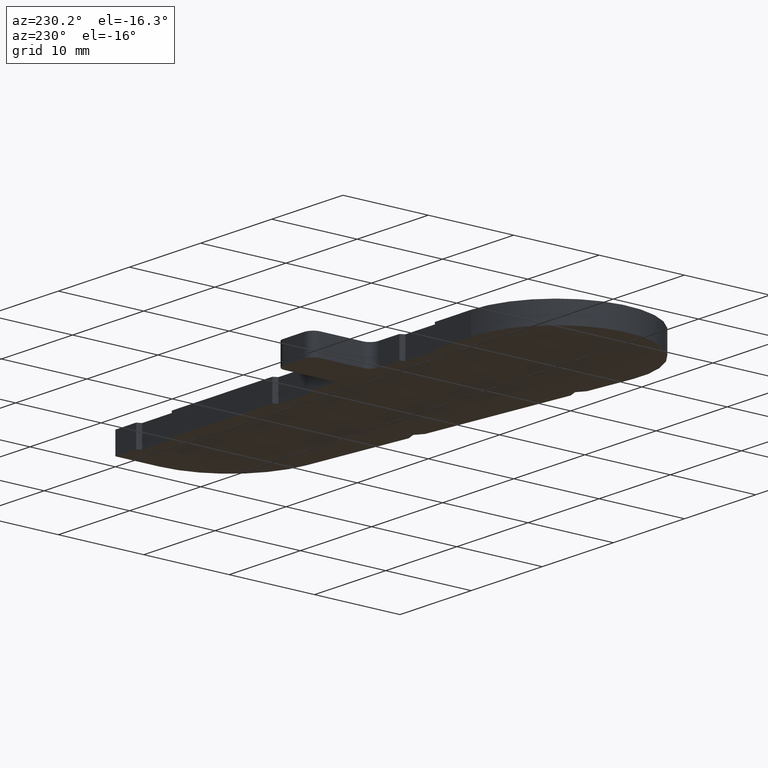
[diagram: clean part render]
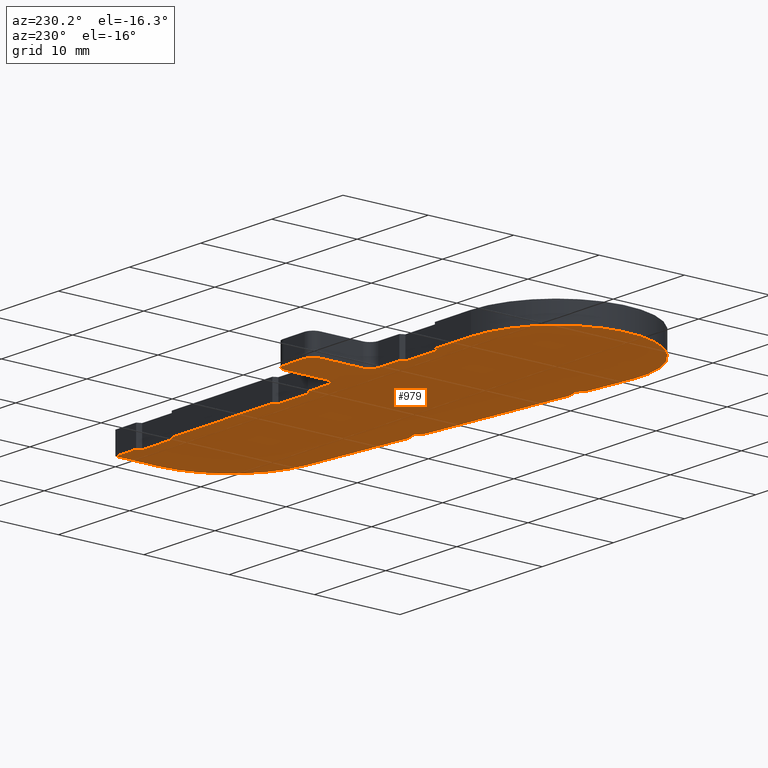
[diagram: same view with one face highlighted and labeled with its STEP entity id]
A machine part, auxiliary view. The second image highlights one B-rep face of the part: STEP entity #979.
In plain terms, the highlighted planar face has unit normal (0, 0, 1).
Its self-contained STEP definition (entity closure, byte-faithful):
#7=CARTESIAN_POINT('',(46.824999561297545,9.500002191171006,0.0));
#8=VERTEX_POINT('',#7);
#9=CARTESIAN_POINT('',(42.324999561297545,9.500001980593879,0.0));
#10=VERTEX_POINT('',#9);
#11=CARTESIAN_POINT('',(46.824999561297545,9.500002191171006,0.0));
#12=DIRECTION('',(-0.999999999999999,-0.000000046794917,0.0));
#13=VECTOR('',#12,4.500000000000004);
#14=LINE('',#11,#13);
#15=EDGE_CURVE('',#8,#10,#14,.T.);
#47=CARTESIAN_POINT('',(42.074999537900112,10.000001968895958,0.0));
#48=VERTEX_POINT('',#47);
#49=CARTESIAN_POINT('',(42.324999561297545,9.500001980593879,0.0));
#50=DIRECTION('',(-0.447213637353989,0.894427170072899,0.0));
#51=VECTOR('',#50,0.559016994375660);
#52=LINE('',#49,#51);
#53=EDGE_CURVE('',#10,#48,#52,.T.);
#78=CARTESIAN_POINT('',(27.924999526201645,10.000001306747436,0.0));
#79=VERTEX_POINT('',#78);
#80=CARTESIAN_POINT('',(42.074999537900112,10.000001968895930,0.0));
#81=DIRECTION('',(-0.999999999999999,-0.000000046794947,0.0));
#82=VECTOR('',#81,14.150000011698483);
#83=LINE('',#80,#82);
#84=EDGE_CURVE('',#48,#79,#83,.T.);
#109=CARTESIAN_POINT('',(27.674999549599079,9.500001295048833,0.0));
#110=VERTEX_POINT('',#109);
#111=CARTESIAN_POINT('',(27.924999526201645,10.000001306747436,0.0));
#112=DIRECTION('',(-0.447213553645438,-0.894427211927175,0.0));
#113=VECTOR('',#112,0.559016994374846);
#114=LINE('',#111,#113);
#115=EDGE_CURVE('',#79,#110,#114,.T.);
#140=CARTESIAN_POINT('',(23.174999549599079,9.500001084471705,0.0));
#141=VERTEX_POINT('',#140);
#142=CARTESIAN_POINT('',(27.674999549599079,9.500001295048833,0.0));
#143=DIRECTION('',(-0.999999999999999,-0.000000046794917,0.0));
#144=VECTOR('',#143,4.500000000000004);
#145=LINE('',#142,#144);
#146=EDGE_CURVE('',#110,#141,#145,.T.);
#171=CARTESIAN_POINT('',(22.924999526201645,10.000001072772875,0.0));
#172=VERTEX_POINT('',#171);
#173=CARTESIAN_POINT('',(23.174999549599079,9.500001084471705,0.0));
#174=DIRECTION('',(-0.447213637354640,0.894427170072574,0.0));
#175=VECTOR('',#174,0.559016994374846);
#176=LINE('',#173,#175);
#177=EDGE_CURVE('',#141,#172,#176,.T.);
#202=CARTESIAN_POINT('',(18.999999532050879,10.000000889102921,0.0));
#203=VERTEX_POINT('',#202);
#204=CARTESIAN_POINT('',(22.924999526201645,10.000001072772875,0.0));
#205=DIRECTION('',(-0.999999999999999,-0.000000046794893,0.0));
#206=VECTOR('',#205,3.924999994150771);
#207=LINE('',#204,#206);
#208=EDGE_CURVE('',#172,#203,#207,.T.);
#233=CARTESIAN_POINT('',(18.999999251281679,16.000000889102921,0.0));
#234=VERTEX_POINT('',#233);
#235=CARTESIAN_POINT('',(18.999999532050879,10.000000889102921,0.0));
#236=DIRECTION('',(-0.000000046794867,0.999999999999999,0.0));
#237=VECTOR('',#236,6.000000000000006);
#238=LINE('',#235,#237);
#239=EDGE_CURVE('',#203,#234,#238,.T.);
#264=CARTESIAN_POINT('',(17.999999204486585,17.000000842308054,0.0));
#265=VERTEX_POINT('',#264);
#266=CARTESIAN_POINT('',(17.999999251281679,16.000000842308054,0.0));
#267=DIRECTION('',(0.0,0.0,1.0));
#268=DIRECTION('',(1.0,0.0,0.0));
#269=AXIS2_PLACEMENT_3D('',#266,#267,#268);
#270=CIRCLE('',#269,1.0);
#271=EDGE_CURVE('',#234,#265,#270,.T.);
#297=CARTESIAN_POINT('',(14.999999204486585,17.000000701923454,0.0));
#298=VERTEX_POINT('',#297);
#299=CARTESIAN_POINT('',(17.999999204486585,17.000000842308054,0.0));
#300=DIRECTION('',(-0.999999999999999,-0.000000046794867,0.0));
#301=VECTOR('',#300,3.000000000000003);
#302=LINE('',#299,#301);
#303=EDGE_CURVE('',#265,#298,#302,.T.);
#328=CARTESIAN_POINT('',(13.999999251281679,16.000000655128588,0.0));
#329=VERTEX_POINT('',#328);
#330=CARTESIAN_POINT('',(14.999999251281679,16.000000701923454,0.0));
#331=DIRECTION('',(0.0,0.0,1.0));
#332=DIRECTION('',(1.0,0.0,0.0));
#333=AXIS2_PLACEMENT_3D('',#330,#331,#332);
#334=CIRCLE('',#333,1.0);
#335=EDGE_CURVE('',#298,#329,#334,.T.);
#361=CARTESIAN_POINT('',(13.999999485256012,11.000000655128588,0.0));
#362=VERTEX_POINT('',#361);
#363=CARTESIAN_POINT('',(13.999999251281679,16.000000655128588,0.0));
#364=DIRECTION('',(0.000000046794867,-0.999999999999999,0.0));
#365=VECTOR('',#364,5.000000000000005);
#366=LINE('',#363,#365);
#367=EDGE_CURVE('',#329,#362,#366,.T.);
#392=CARTESIAN_POINT('',(12.999999532050879,10.000000608333721,0.0));
#393=VERTEX_POINT('',#392);
#394=CARTESIAN_POINT('',(12.999999485256012,11.000000608333721,0.0));
#395=DIRECTION('',(0.0,0.0,-1.0));
#396=DIRECTION('',(1.0,0.0,0.0));
#397=AXIS2_PLACEMENT_3D('',#394,#395,#396);
#398=CIRCLE('',#397,1.0);
#399=EDGE_CURVE('',#362,#393,#398,.T.);
#425=CARTESIAN_POINT('',(10.074999537900339,10.000000471458634,0.0));
#426=VERTEX_POINT('',#425);
#427=CARTESIAN_POINT('',(12.999999532050879,10.000000608333721,0.0));
#428=DIRECTION('',(-0.999999999999999,-0.000000046794902,0.0));
#429=VECTOR('',#428,2.924999994150543);
#430=LINE('',#427,#429);
#431=EDGE_CURVE('',#393,#426,#430,.T.);
#456=CARTESIAN_POINT('',(9.824999561297773,9.500000459759804,0.0));
#457=VERTEX_POINT('',#456);
#458=CARTESIAN_POINT('',(10.074999537900339,10.000000471458634,0.0));
#459=DIRECTION('',(-0.447213553645275,-0.894427211927256,0.0));
#460=VECTOR('',#459,0.559016994375050);
#461=LINE('',#458,#460);
#462=EDGE_CURVE('',#426,#457,#461,.T.);
#487=CARTESIAN_POINT('',(5.324999561297773,9.500000249182904,0.0));
#488=VERTEX_POINT('',#487);
#489=CARTESIAN_POINT('',(9.824999561297773,9.500000459759804,0.0));
#490=DIRECTION('',(-0.999999999999999,-0.000000046794867,0.0));
#491=VECTOR('',#490,4.500000000000004);
#492=LINE('',#489,#491);
#493=EDGE_CURVE('',#457,#488,#492,.T.);
#518=CARTESIAN_POINT('',(5.074999537900339,10.000000237484073,0.0));
#519=VERTEX_POINT('',#518);
#520=CARTESIAN_POINT('',(5.324999561297773,9.500000249182904,0.0));
#521=DIRECTION('',(-0.447213637354640,0.894427170072574,0.0));
#522=VECTOR('',#521,0.559016994374846);
#523=LINE('',#520,#522);
#524=EDGE_CURVE('',#488,#519,#523,.T.);
#549=CARTESIAN_POINT('',(-0.000000467949107,10.0,0.0));
#550=VERTEX_POINT('',#549);
#551=CARTESIAN_POINT('',(5.074999537900339,10.000000237484073,0.0));
#552=DIRECTION('',(-0.999999999999999,-0.000000046794891,0.0));
#553=VECTOR('',#552,5.075000005849466);
#554=LINE('',#551,#553);
#555=EDGE_CURVE('',#519,#550,#554,.T.);
#580=CARTESIAN_POINT('',(1.207414269662650,-9.926839919199665,0.0));
#581=VERTEX_POINT('',#580);
#582=CARTESIAN_POINT('',(0.0,0.0,0.0));
#583=DIRECTION('',(0.0,0.0,1.0));
#584=DIRECTION('',(1.0,0.0,0.0));
#585=AXIS2_PLACEMENT_3D('',#582,#583,#584);
#586=CIRCLE('',#585,10.0);
#587=EDGE_CURVE('',#550,#581,#586,.T.);
#613=CARTESIAN_POINT('',(6.807316435082385,-9.245716637442456,0.0));
#614=VERTEX_POINT('',#613);
#615=CARTESIAN_POINT('',(1.207414269662650,-9.926839919199665,0.0));
#616=DIRECTION('',(0.992683991919963,0.120741426966250,0.0));
#617=VECTOR('',#616,5.641173032909157);
#618=LINE('',#615,#617);
#619=EDGE_CURVE('',#581,#614,#618,.T.);
#644=CARTESIAN_POINT('',(7.739629713516813,-8.628633214517635,0.0));
#645=VERTEX_POINT('',#644);
#646=CARTESIAN_POINT('',(6.807316435082385,-9.245716637442456,0.0));
#647=DIRECTION('',(0.833886346764108,0.551936192580638,0.0));
#648=VECTOR('',#647,1.118033988747107);
#649=LINE('',#646,#648);
#650=EDGE_CURVE('',#614,#645,#649,.T.);
#675=CARTESIAN_POINT('',(8.792684418921908,-9.004233783510017,0.0));
#676=VERTEX_POINT('',#675);
#677=CARTESIAN_POINT('',(7.739629713516813,-8.628633214517635,0.0));
#678=DIRECTION('',(0.941880762122971,-0.335947361862914,0.0));
#679=VECTOR('',#678,1.118033988749916);
#680=LINE('',#677,#679);
#681=EDGE_CURVE('',#645,#676,#680,.T.);
#706=CARTESIAN_POINT('',(26.660996273461265,-6.830888098122358,0.0));
#707=VERTEX_POINT('',#706);
#708=CARTESIAN_POINT('',(8.792684418921908,-9.004233783510017,0.0));
#709=DIRECTION('',(0.992683991919979,0.120741426966118,0.0));
#710=VECTOR('',#709,17.999999999979579);
#711=LINE('',#708,#710);
#712=EDGE_CURVE('',#676,#707,#711,.T.);
#737=CARTESIAN_POINT('',(27.593309551896802,-6.213804675197025,0.0));
#738=VERTEX_POINT('',#737);
#739=CARTESIAN_POINT('',(26.660996273461265,-6.830888098122358,0.0));
#740=DIRECTION('',(0.833886346764199,0.551936192580500,0.0));
#741=VECTOR('',#740,1.118033988748313);
#742=LINE('',#739,#741);
#743=EDGE_CURVE('',#707,#738,#742,.T.);
#768=CARTESIAN_POINT('',(28.646364257301919,-6.589405244191568,0.0));
#769=VERTEX_POINT('',#768);
#770=CARTESIAN_POINT('',(27.593309551896802,-6.213804675197025,0.0));
#771=DIRECTION('',(0.941880762122903,-0.335947361863103,0.0));
#772=VECTOR('',#771,1.118033988752078);
#773=LINE('',#770,#772);
#774=EDGE_CURVE('',#738,#769,#773,.T.);
#799=CARTESIAN_POINT('',(41.207414041973578,-5.061588650451199,0.0));
#800=VERTEX_POINT('',#799);
#801=CARTESIAN_POINT('',(28.646364257301919,-6.589405244191568,0.0));
#802=DIRECTION('',(0.992683991919960,0.120741426966280,0.0));
#803=VECTOR('',#802,12.653623798624185);
#804=LINE('',#801,#803);
#805=EDGE_CURVE('',#769,#800,#804,.T.);
#830=CARTESIAN_POINT('',(49.999999772310446,4.865251736693210,0.0));
#831=VERTEX_POINT('',#830);
#832=CARTESIAN_POINT('',(39.999999772310467,4.865251268748353,0.0));
#833=DIRECTION('',(0.0,0.0,1.000000000000000));
#834=DIRECTION('',(0.120741426966311,-0.992683991919956,0.0));
#835=AXIS2_PLACEMENT_3D('',#832,#833,#834);
#836=CIRCLE('',#835,9.999999999999993);
#837=EDGE_CURVE('',#800,#831,#836,.T.);
#863=CARTESIAN_POINT('',(49.999999772310446,10.000002339735374,0.0));
#864=VERTEX_POINT('',#863);
#865=CARTESIAN_POINT('',(49.999999772310446,4.865251736693210,0.0));
#866=DIRECTION('',(0.0,1.0,0.0));
#867=VECTOR('',#866,5.134750603042164);
#868=LINE('',#865,#867);
#869=EDGE_CURVE('',#831,#864,#868,.T.);
#894=CARTESIAN_POINT('',(47.074999537900112,10.000002202864096,0.0));
#895=VERTEX_POINT('',#894);
#896=CARTESIAN_POINT('',(49.999999772310453,10.000002339735374,0.0));
#897=DIRECTION('',(-0.999999999999999,-0.000000046793596,0.0));
#898=VECTOR('',#897,2.925000234410344);
#899=LINE('',#896,#898);
#900=EDGE_CURVE('',#864,#895,#899,.T.);
#925=CARTESIAN_POINT('',(47.074999537900112,10.000002202864096,0.0));
#926=DIRECTION('',(-0.447213553649383,-0.894427211925202,0.0));
#927=VECTOR('',#926,0.559016994369915);
#928=LINE('',#925,#927);
#929=EDGE_CURVE('',#895,#8,#928,.T.);
#942=CARTESIAN_POINT('',(-16.000119977836718,-12.700120084789177,0.0));
#943=DIRECTION('',(0.0,0.0,1.0));
#944=DIRECTION('',(1.0,0.0,0.0));
#945=AXIS2_PLACEMENT_3D('',#942,#943,#944);
#946=PLANE('',#945);
#947=ORIENTED_EDGE('',*,*,#929,.F.);
#948=ORIENTED_EDGE('',*,*,#900,.F.);
#949=ORIENTED_EDGE('',*,*,#869,.F.);
#950=ORIENTED_EDGE('',*,*,#837,.F.);
#951=ORIENTED_EDGE('',*,*,#805,.F.);
#952=ORIENTED_EDGE('',*,*,#774,.F.);
#953=ORIENTED_EDGE('',*,*,#743,.F.);
#954=ORIENTED_EDGE('',*,*,#712,.F.);
#955=ORIENTED_EDGE('',*,*,#681,.F.);
#956=ORIENTED_EDGE('',*,*,#650,.F.);
#957=ORIENTED_EDGE('',*,*,#619,.F.);
#958=ORIENTED_EDGE('',*,*,#587,.F.);
#959=ORIENTED_EDGE('',*,*,#555,.F.);
#960=ORIENTED_EDGE('',*,*,#524,.F.);
#961=ORIENTED_EDGE('',*,*,#493,.F.);
#962=ORIENTED_EDGE('',*,*,#462,.F.);
#963=ORIENTED_EDGE('',*,*,#431,.F.);
#964=ORIENTED_EDGE('',*,*,#399,.F.);
#965=ORIENTED_EDGE('',*,*,#367,.F.);
#966=ORIENTED_EDGE('',*,*,#335,.F.);
#967=ORIENTED_EDGE('',*,*,#303,.F.);
#968=ORIENTED_EDGE('',*,*,#271,.F.);
#969=ORIENTED_EDGE('',*,*,#239,.F.);
#970=ORIENTED_EDGE('',*,*,#208,.F.);
#971=ORIENTED_EDGE('',*,*,#177,.F.);
#972=ORIENTED_EDGE('',*,*,#146,.F.);
#973=ORIENTED_EDGE('',*,*,#115,.F.);
#974=ORIENTED_EDGE('',*,*,#84,.F.);
#975=ORIENTED_EDGE('',*,*,#53,.F.);
#976=ORIENTED_EDGE('',*,*,#15,.F.);
#977=EDGE_LOOP('',(#947,#948,#949,#950,#951,#952,#953,#954,#955,#956,#957,#958,#959,#960,#961,#962,#963,#964,#965,#966,#967,#968,#969,#970,#971,#972,#973,#974,#975,#976));
#978=FACE_OUTER_BOUND('',#977,.T.);
#979=ADVANCED_FACE('',(#978),#946,.F.);